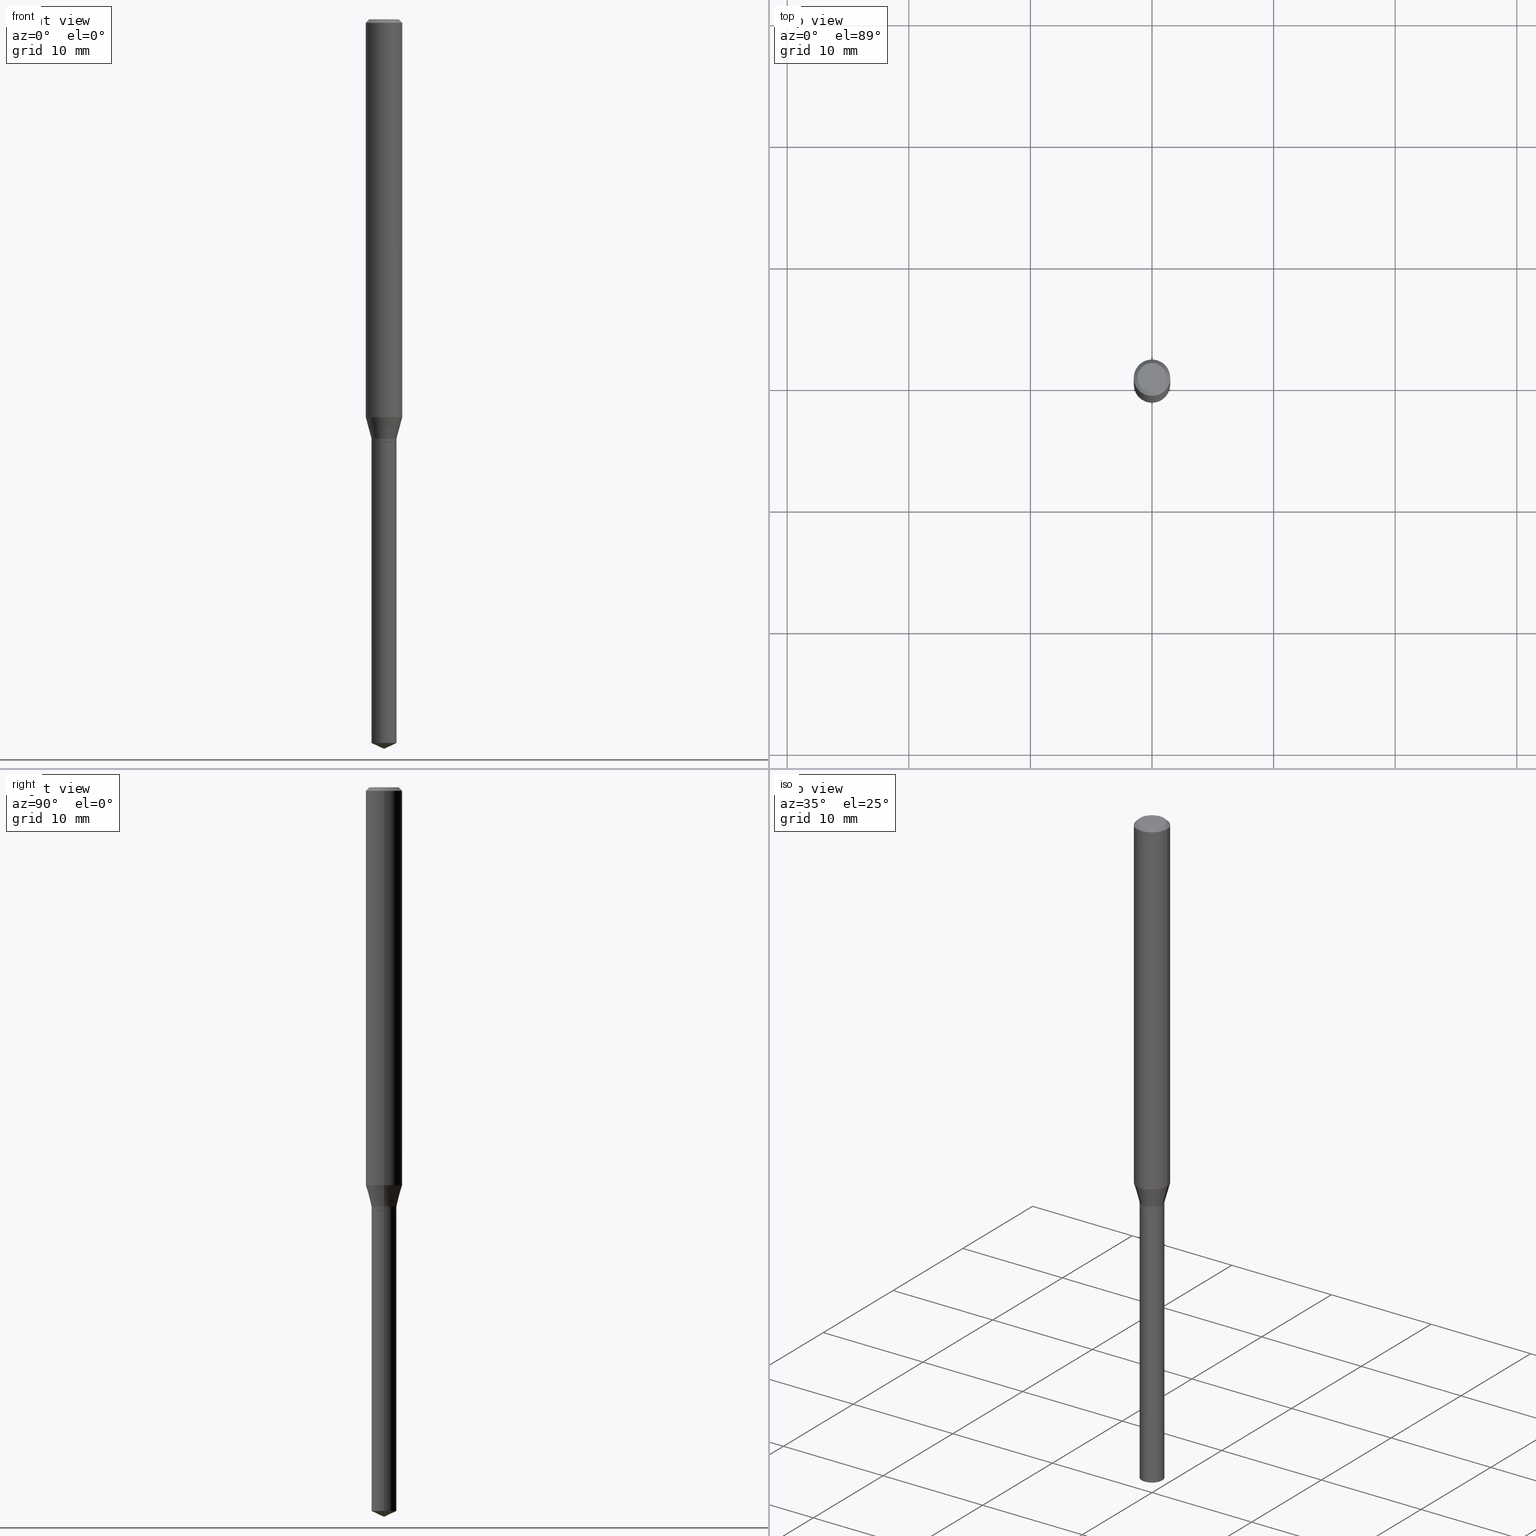
[diagram: canonical four-view strip — front | top / right | iso, engineering-drawing reading convention]
A machine part, canonical four-view strip (front | top / right | iso — engineering-drawing reading convention). The complete STEP part file that produces these views, byte-faithful:
ISO-10303-21;
HEADER;
FILE_DESCRIPTION (( 'STEP AP203' ),
    '1' );
FILE_NAME ('07607.STEP',
    '2024-04-23T23:40:49',
    ( '' ),
    ( '' ),
    'SwSTEP 2.0',
    'SolidWorks 2023',
    '' );
FILE_SCHEMA (( 'CONFIG_CONTROL_DESIGN' ));
ENDSEC;

DATA;
#1 = CONICAL_SURFACE ( 'NONE', #436, 0.03984999999999999654, 0.7853981633978580623 ) ;
#2 = CARTESIAN_POINT ( 'NONE',  ( -9.050161304213721862E-28, 1.292123180114298356E-13, 37.00787874015748002 ) ) ;
#3 = AXIS2_PLACEMENT_3D ( 'NONE', #201, #46, #124 ) ;
#4 = CARTESIAN_POINT ( 'NONE',  ( 0.04035000000000003167, -5.023194202193633162E-15, -1.358000000000000096 ) ) ;
#5 = DIMENSIONAL_EXPONENTS ( 1.000000000000000000, 0.000000000000000000, 0.000000000000000000, 0.000000000000000000, 0.000000000000000000, 0.000000000000000000, 0.000000000000000000 ) ;
#6 = CC_DESIGN_DATE_AND_TIME_ASSIGNMENT ( #303, #101, ( #152 ) ) ;
#7 = CIRCLE ( 'NONE', #215, 0.04035000000000003167 ) ;
#8 = CYLINDRICAL_SURFACE ( 'NONE', #31, 0.05905000000000008159 ) ;
#9 = CONICAL_SURFACE ( 'NONE', #3, 84.42940631927376671, 1.134464013796313342 ) ;
#10 = CARTESIAN_POINT ( 'NONE',  ( 3.320946638799415978E-29, -4.741431658148991442E-15, -1.358000000000000096 ) ) ;
#11 = CYLINDRICAL_SURFACE ( 'NONE', #17, 0.04035000000000003167 ) ;
#12 = DIRECTION ( 'NONE',  ( -2.445468806185136597E-29, 3.491481338843145583E-15, 1.000000000000000000 ) ) ;
#13 = EDGE_CURVE ( 'NONE', #308, #357, #212, .T. ) ;
#14 = EDGE_LOOP ( 'NONE', ( #104, #78, #474, #96 ) ) ;
#15 = DIRECTION ( 'NONE',  ( -2.445468806185136597E-29, 3.491481338843145583E-15, 1.000000000000000000 ) ) ;
#16 = DIRECTION ( 'NONE',  ( -1.000000000000000000, 6.982962677686265922E-15, -4.876176775795935793E-29 ) ) ;
#17 = AXIS2_PLACEMENT_3D ( 'NONE', #167, #321, #468 ) ;
#18 = CARTESIAN_POINT ( 'NONE',  ( 4.132873053354867254E-48, -5.900647395337818946E-34, -1.690012582823346072E-19 ) ) ;
#19 = VECTOR ( 'NONE', #55, 39.37007874015748143 ) ;
#20 = DIRECTION ( 'NONE',  ( 1.000000000000000000, -6.982962677686270655E-15, 0.000000000000000000 ) ) ;
#21 = DATE_AND_TIME ( #345, #309 ) ;
#22 = ORIENTED_EDGE ( 'NONE', *, *, #102, .F. ) ;
#23 = APPROVAL_STATUS ( 'not_yet_approved' ) ;
#24 = ORIENTED_EDGE ( 'NONE', *, *, #401, .T. ) ;
#25 = DIRECTION ( 'NONE',  ( -2.438088387897960049E-29, 3.491481338843145188E-15, 1.000000000000000000 ) ) ;
#26 = DIRECTION ( 'NONE',  ( -2.445468806185136597E-29, 3.491481338843145583E-15, 1.000000000000000000 ) ) ;
#27 = CARTESIAN_POINT ( 'NONE',  ( 3.350536811354256393E-29, -4.783678582348994195E-15, -1.370100000000000318 ) ) ;
#28 = CIRCLE ( 'NONE', #380, 0.04035000000000003167 ) ;
#29 = FACE_OUTER_BOUND ( 'NONE', #140, .T. ) ;
#30 = CLOSED_SHELL ( 'NONE', ( #109, #439, #359, #170, #100 ) ) ;
#31 = AXIS2_PLACEMENT_3D ( 'NONE', #305, #395, #105 ) ;
#32 = CARTESIAN_POINT ( 'NONE',  ( 0.000000000000000000, 0.000000000000000000, 0.000000000000000000 ) ) ;
#33 = CC_DESIGN_APPROVAL ( #343, ( #82 ) ) ;
#34 = DATE_TIME_ROLE ( 'creation_date' ) ;
#35 = EDGE_CURVE ( 'NONE', #280, #129, #28, .T. ) ;
#36 = DIRECTION ( 'NONE',  ( 1.000000000000000000, -6.982962677686266711E-15, 4.876185090822587894E-29 ) ) ;
#37 = APPROVAL_ROLE ( '' ) ;
#38 =( NAMED_UNIT ( * ) PLANE_ANGLE_UNIT ( ) SI_UNIT ( $, .RADIAN. ) );
#39 = DIRECTION ( 'NONE',  ( 1.000000000000000000, -6.982962677686267499E-15, 4.876176775795936353E-29 ) ) ;
#40 = LINE ( 'NONE', #72, #327 ) ;
#41 = EDGE_CURVE ( 'NONE', #280, #288, #437, .T. ) ;
#42 = AXIS2_PLACEMENT_3D ( 'NONE', #338, #323, #138 ) ;
#43 = DIRECTION ( 'NONE',  ( -2.445468806185136597E-29, 3.491481338843145583E-15, 1.000000000000000000 ) ) ;
#44 = MANIFOLD_SOLID_BREP ( 'Body-Move/Copy2[1]', #30 ) ;
#45 = CARTESIAN_POINT ( 'NONE',  ( -0.04035000000000003167, -4.474978256035082057E-15, -1.369600000000000595 ) ) ;
#46 = DIRECTION ( 'NONE',  ( -2.445468806185136597E-29, 3.491481338843145583E-15, 1.000000000000000000 ) ) ;
#47 = EDGE_CURVE ( 'NONE', #245, #158, #7, .T. ) ;
#48 = ORIENTED_EDGE ( 'NONE', *, *, #350, .T. ) ;
#49 = EDGE_CURVE ( 'NONE', #178, #166, #76, .T. ) ;
#50 = AXIS2_PLACEMENT_3D ( 'NONE', #274, #383, #36 ) ;
#51 = DIRECTION ( 'NONE',  ( 1.000000000000000000, -6.982962677686265133E-15, 0.000000000000000000 ) ) ;
#52 = DIRECTION ( 'NONE',  ( -1.000000000000000000, 6.982962677686266711E-15, 0.000000000000000000 ) ) ;
#53 = ORIENTED_EDGE ( 'NONE', *, *, #149, .F. ) ;
#54 = ORIENTED_EDGE ( 'NONE', *, *, #220, .F. ) ;
#55 = DIRECTION ( 'NONE',  ( 0.7071067811865453523, -7.319954787623248157E-15, -0.7071067811865496822 ) ) ;
#56 = CONICAL_SURFACE ( 'NONE', #466, 0.04035000000000003167, 0.2617993877991496854 ) ;
#57 = ADVANCED_FACE ( 'NONE', ( #145 ), #233, .T. ) ;
#58 = LOCAL_TIME ( 19, 40, 49.00000000000000000, #384 ) ;
#59 = PRODUCT_DEFINITION_SHAPE ( 'NONE', 'NONE',  #394 ) ;
#60 = DIRECTION ( 'NONE',  ( 1.000000000000000000, -6.982962677686271444E-15, 0.000000000000000000 ) ) ;
#61 = ORIENTED_EDGE ( 'NONE', *, *, #465, .T. ) ;
#62 = ORIENTED_EDGE ( 'NONE', *, *, #13, .T. ) ;
#63 = CARTESIAN_POINT ( 'NONE',  ( -0.05905000000000015792, -4.078187959153139361E-15, -1.288210649898461790 ) ) ;
#64 = DIRECTION ( 'NONE',  ( 1.000000000000000000, 0.000000000000000000, 0.000000000000000000 ) ) ;
#65 = DIRECTION ( 'NONE',  ( -2.445468806185136597E-29, 3.491481338843145583E-15, 1.000000000000000000 ) ) ;
#66 = VECTOR ( 'NONE', #393, 39.37007874015748143 ) ;
#67 = VECTOR ( 'NONE', #313, 39.37007874015748143 ) ;
#68 = DIRECTION ( 'NONE',  ( -2.445468806185136877E-29, 3.491481338843145188E-15, 1.000000000000000000 ) ) ;
#69 = APPROVAL_STATUS ( 'not_yet_approved' ) ;
#70 = DIRECTION ( 'NONE',  ( -2.445468806185136877E-29, 3.491481338843145188E-15, 1.000000000000000000 ) ) ;
#71 = CARTESIAN_POINT ( 'NONE',  ( 0.04034999999999999698, -5.065441126393635915E-15, -1.370100000000000318 ) ) ;
#72 = CARTESIAN_POINT ( 'NONE',  ( -0.05904999999999999832, 3.711095515056362547E-16, -0.01181000000000007044 ) ) ;
#73 = VERTEX_POINT ( 'NONE', #210 ) ;
#74 = CARTESIAN_POINT ( 'NONE',  ( 3.350536811354256393E-29, -4.783678582348994195E-15, -1.370100000000000318 ) ) ;
#75 = COORDINATED_UNIVERSAL_TIME_OFFSET ( 5, 0, .BEHIND. ) ;
#76 = CIRCLE ( 'NONE', #314, 0.04034999999999999698 ) ;
#77 = AXIS2_PLACEMENT_3D ( 'NONE', #440, #330, #476 ) ;
#78 = ORIENTED_EDGE ( 'NONE', *, *, #123, .T. ) ;
#79 = EDGE_CURVE ( 'NONE', #288, #308, #473, .T. ) ;
#80 = ORIENTED_EDGE ( 'NONE', *, *, #41, .T. ) ;
#81 = AXIS2_PLACEMENT_3D ( 'NONE', #278, #203, #398 ) ;
#82 = PRODUCT_DEFINITION_FORMATION_WITH_SPECIFIED_SOURCE ( 'ANY', '', #144, .NOT_KNOWN. ) ;
#83 = EDGE_LOOP ( 'NONE', ( #355, #443, #132, #485 ) ) ;
#84 = CC_DESIGN_PERSON_AND_ORGANIZATION_ASSIGNMENT ( #347, #227, ( #152 ) ) ;
#85 = AXIS2_PLACEMENT_3D ( 'NONE', #265, #461, #270 ) ;
#86 = EDGE_LOOP ( 'NONE', ( #161, #364, #225, #183 ) ) ;
#87 = CARTESIAN_POINT ( 'NONE',  ( 3.349314076951164712E-29, -4.781932841679574269E-15, -1.369600000000000595 ) ) ;
#88 = ORIENTED_EDGE ( 'NONE', *, *, #276, .F. ) ;
#89 = EDGE_CURVE ( 'NONE', #308, #288, #116, .T. ) ;
#90 = DIRECTION ( 'NONE',  ( 1.000000000000000000, -6.982962677686265133E-15, 0.000000000000000000 ) ) ;
#91 = PRODUCT_RELATED_PRODUCT_CATEGORY ( 'detail', '', ( #144 ) ) ;
#92 = ORIENTED_EDGE ( 'NONE', *, *, #460, .T. ) ;
#93 = CARTESIAN_POINT ( 'NONE',  ( 0.04035000000000000392, -8.463645746625293434E-15, -2.343384485993445843 ) ) ;
#94 = ORIENTED_EDGE ( 'NONE', *, *, #285, .F. ) ;
#95 = VECTOR ( 'NONE', #269, 39.37007874015748143 ) ;
#96 = ORIENTED_EDGE ( 'NONE', *, *, #248, .F. ) ;
#97 = APPROVAL_DATE_TIME ( #263, #343 ) ;
#98 = DIRECTION ( 'NONE',  ( -2.445468806185136877E-29, 3.491481338843145188E-15, 1.000000000000000000 ) ) ;
#99 = ORIENTED_EDGE ( 'NONE', *, *, #365, .T. ) ;
#100 = ADVANCED_FACE ( 'NONE', ( #368 ), #372, .F. ) ;
#101 = DATE_TIME_ROLE ( 'classification_date' ) ;
#102 = EDGE_CURVE ( 'NONE', #301, #357, #122, .T. ) ;
#103 = APPROVAL_ROLE ( '' ) ;
#104 = ORIENTED_EDGE ( 'NONE', *, *, #470, .T. ) ;
#105 = DIRECTION ( 'NONE',  ( 1.000000000000000000, -6.982962677686267499E-15, 4.876176775795936353E-29 ) ) ;
#106 = CIRCLE ( 'NONE', #172, 0.04035000000000003167 ) ;
#107 = VECTOR ( 'NONE', #386, 39.37007874015748143 ) ;
#108 = CARTESIAN_POINT ( 'NONE',  ( 0.04724000000000000421, -3.852183633974369345E-16, -3.380025165621689721E-19 ) ) ;
#109 = ADVANCED_FACE ( 'NONE', ( #326 ), #410, .T. ) ;
#110 = LINE ( 'NONE', #353, #427 ) ;
#111 = LINE ( 'NONE', #328, #19 ) ;
#112 = ORIENTED_EDGE ( 'NONE', *, *, #276, .T. ) ;
#113 = CYLINDRICAL_SURFACE ( 'NONE', #283, 0.04034999999999999698 ) ;
#114 = LINE ( 'NONE', #126, #242 ) ;
#115 = ADVANCED_BREP_SHAPE_REPRESENTATION ( '07607', ( #44, #206, #209 ), #448 ) ;
#116 = CIRCLE ( 'NONE', #159, 0.05905000000000015792 ) ;
#117 = DIRECTION ( 'NONE',  ( 1.000000000000000000, -6.982962677686258822E-15, 0.000000000000000000 ) ) ;
#118 = DATE_AND_TIME ( #198, #128 ) ;
#119 = ADVANCED_FACE ( 'NONE', ( #135 ), #462, .T. ) ;
#120 = ORIENTED_EDGE ( 'NONE', *, *, #35, .F. ) ;
#121 = DIRECTION ( 'NONE',  ( -2.445468806185136597E-29, 3.491481338843145583E-15, 1.000000000000000000 ) ) ;
#122 = CIRCLE ( 'NONE', #197, 0.05904999999999999832 ) ;
#123 = EDGE_CURVE ( 'NONE', #489, #158, #110, .T. ) ;
#124 = DIRECTION ( 'NONE',  ( 1.000000000000000000, -6.982962677686265922E-15, 0.000000000000000000 ) ) ;
#125 = ORIENTED_EDGE ( 'NONE', *, *, #374, .F. ) ;
#126 = CARTESIAN_POINT ( 'NONE',  ( -0.05905000000000008159, 4.195754854663397395E-16, -2.904631170795525745E-30 ) ) ;
#127 = DIRECTION ( 'NONE',  ( 2.438088387897960049E-29, -3.491481338843145188E-15, -1.000000000000000000 ) ) ;
#128 = LOCAL_TIME ( 19, 40, 49.00000000000000000, #75 ) ;
#129 = VERTEX_POINT ( 'NONE', #4 ) ;
#130 = FACE_OUTER_BOUND ( 'NONE', #271, .T. ) ;
#131 = PERSON ( 'UNSPECIFIED', 'UNSPECIFIED', 'UNSPECIFIED', ('UNSPECIFIED'), ('UNSPECIFIED'), ('UNSPECIFIED') ) ;
#132 = ORIENTED_EDGE ( 'NONE', *, *, #350, .F. ) ;
#133 = ORIENTED_EDGE ( 'NONE', *, *, #102, .T. ) ;
#134 = DIRECTION ( 'NONE',  ( 2.438088387897960049E-29, -3.491481338843145188E-15, -1.000000000000000000 ) ) ;
#135 = FACE_OUTER_BOUND ( 'NONE', #322, .T. ) ;
#136 = ORIENTED_EDGE ( 'NONE', *, *, #211, .T. ) ;
#137 = VERTEX_POINT ( 'NONE', #108 ) ;
#138 = DIRECTION ( 'NONE',  ( 1.000000000000000000, -6.982962677686266711E-15, 0.000000000000000000 ) ) ;
#139 = UNCERTAINTY_MEASURE_WITH_UNIT (LENGTH_MEASURE( 1.000000000000000082E-05 ), #190, 'distance_accuracy_value', 'NONE');
#140 = EDGE_LOOP ( 'NONE', ( #148, #156 ) ) ;
#141 = ORIENTED_EDGE ( 'NONE', *, *, #89, .F. ) ;
#142 = AXIS2_PLACEMENT_3D ( 'NONE', #324, #302, #51 ) ;
#143 = CONICAL_SURFACE ( 'NONE', #289, 0.03984999999999999654, 0.7853981633978580623 ) ;
#144 = PRODUCT ( '07607', '07607', '', ( #487 ) ) ;
#145 = FACE_OUTER_BOUND ( 'NONE', #232, .T. ) ;
#146 = CALENDAR_DATE ( 2024, 23, 4 ) ;
#147 = CARTESIAN_POINT ( 'NONE',  ( -0.03984999999999999654, -4.497878074974484277E-15, -1.370100000000000318 ) ) ;
#148 = ORIENTED_EDGE ( 'NONE', *, *, #470, .F. ) ;
#149 = EDGE_CURVE ( 'NONE', #329, #137, #411, .T. ) ;
#150 = PERSON_AND_ORGANIZATION_ROLE ( 'design_owner' ) ;
#151 = AXIS2_PLACEMENT_3D ( 'NONE', #18, #134, #252 ) ;
#152 = SECURITY_CLASSIFICATION ( '', '', #221 ) ;
#153 = FACE_OUTER_BOUND ( 'NONE', #438, .T. ) ;
#154 = CARTESIAN_POINT ( 'NONE',  ( 5.776686413970529753E-29, -8.247577218615279626E-15, -2.362200000000000077 ) ) ;
#155 = CARTESIAN_POINT ( 'NONE',  ( 3.350536811354256393E-29, -4.783678582348994195E-15, -1.370100000000000318 ) ) ;
#156 = ORIENTED_EDGE ( 'NONE', *, *, #490, .F. ) ;
#157 = CARTESIAN_POINT ( 'NONE',  ( 8.265746106709734507E-48, -1.180129479067563789E-33, -3.380025165646692144E-19 ) ) ;
#158 = VERTEX_POINT ( 'NONE', #45 ) ;
#159 = AXIS2_PLACEMENT_3D ( 'NONE', #471, #294, #20 ) ;
#160 = CARTESIAN_POINT ( 'NONE',  ( 5.730673661395162448E-29, -8.181883202580652503E-15, -2.343384485993445843 ) ) ;
#161 = ORIENTED_EDGE ( 'NONE', *, *, #254, .T. ) ;
#162 = CC_DESIGN_PERSON_AND_ORGANIZATION_ASSIGNMENT ( #373, #150, ( #144 ) ) ;
#163 = AXIS2_PLACEMENT_3D ( 'NONE', #406, #174, #52 ) ;
#164 = AXIS2_PLACEMENT_3D ( 'NONE', #389, #65, #452 ) ;
#165 = CARTESIAN_POINT ( 'NONE',  ( -0.04035000000000003167, -4.474978256035082057E-15, -1.358000000000000096 ) ) ;
#166 = VERTEX_POINT ( 'NONE', #453 ) ;
#167 = CARTESIAN_POINT ( 'NONE',  ( 0.000000000000000000, 0.000000000000000000, 0.000000000000000000 ) ) ;
#168 = CARTESIAN_POINT ( 'NONE',  ( 3.350536811354256393E-29, -4.783678582348994195E-15, -1.370100000000000318 ) ) ;
#169 = EDGE_LOOP ( 'NONE', ( #319, #112, #371 ) ) ;
#170 = ADVANCED_FACE ( 'NONE', ( #153 ), #113, .T. ) ;
#171 = CARTESIAN_POINT ( 'NONE',  ( 2.888098660104663766E-31, -4.123439461173779647E-17, -0.01181000000000007044 ) ) ;
#172 = AXIS2_PLACEMENT_3D ( 'NONE', #196, #272, #200 ) ;
#173 = AXIS2_PLACEMENT_3D ( 'NONE', #27, #223, #199 ) ;
#174 = DIRECTION ( 'NONE',  ( 2.445468806185136597E-29, -3.491481338843145583E-15, -1.000000000000000000 ) ) ;
#175 = ORIENTED_EDGE ( 'NONE', *, *, #237, .T. ) ;
#176 = APPROVAL_ROLE ( '' ) ;
#177 = CARTESIAN_POINT ( 'NONE',  ( -0.04724000000000000421, 3.504923541997677355E-16, -3.380025165670481712E-19 ) ) ;
#178 = VERTEX_POINT ( 'NONE', #486 ) ;
#179 = APPROVAL_DATE_TIME ( #449, #445 ) ;
#180 = CC_DESIGN_DATE_AND_TIME_ASSIGNMENT ( #21, #34, ( #394 ) ) ;
#181 = DIRECTION ( 'NONE',  ( 1.000000000000000000, -6.982962677686265922E-15, 4.876176775795935793E-29 ) ) ;
#182 = FACE_OUTER_BOUND ( 'NONE', #14, .T. ) ;
#183 = ORIENTED_EDGE ( 'NONE', *, *, #365, .F. ) ;
#184 = PERSON_AND_ORGANIZATION ( #131, #234 ) ;
#185 = LENGTH_MEASURE_WITH_UNIT ( LENGTH_MEASURE( 0.02539999999999999897 ), #310 );
#186 = CARTESIAN_POINT ( 'NONE',  ( 5.776686413970529753E-29, -8.247577218615279626E-15, -2.362200000000000077 ) ) ;
#187 = APPROVAL_PERSON_ORGANIZATION ( #259, #358, #37 ) ;
#188 = LINE ( 'NONE', #421, #483 ) ;
#189 = PERSON_AND_ORGANIZATION ( #131, #234 ) ;
#190 =( CONVERSION_BASED_UNIT ( 'INCH', #185 ) LENGTH_UNIT ( ) NAMED_UNIT ( #5 ) );
#191 = DIRECTION ( 'NONE',  ( 1.000000000000000000, -6.982962677686271444E-15, 0.000000000000000000 ) ) ;
#192 = EDGE_CURVE ( 'NONE', #158, #280, #222, .T. ) ;
#193 = DIRECTION ( 'NONE',  ( 1.000000000000000000, -6.982962677686271444E-15, 0.000000000000000000 ) ) ;
#194 = PERSON_AND_ORGANIZATION_ROLE ( 'creator' ) ;
#195 = CC_DESIGN_PERSON_AND_ORGANIZATION_ASSIGNMENT ( #258, #415, ( #82 ) ) ;
#196 = CARTESIAN_POINT ( 'NONE',  ( 3.320946638799415978E-29, -4.741431658148991442E-15, -1.358000000000000096 ) ) ;
#197 = AXIS2_PLACEMENT_3D ( 'NONE', #171, #447, #331 ) ;
#198 = CALENDAR_DATE ( 2024, 23, 4 ) ;
#199 = DIRECTION ( 'NONE',  ( 1.000000000000000000, -6.982962677686258822E-15, 0.000000000000000000 ) ) ;
#200 = DIRECTION ( 'NONE',  ( 1.000000000000000000, -6.982962677686265133E-15, 0.000000000000000000 ) ) ;
#201 = CARTESIAN_POINT ( 'NONE',  ( -9.050161304213721862E-28, 1.292123180114298356E-13, 37.00787874015748002 ) ) ;
#202 = EDGE_LOOP ( 'NONE', ( #472, #24, #48, #339 ) ) ;
#203 = DIRECTION ( 'NONE',  ( -2.445468806185136597E-29, 3.491481338843145583E-15, 1.000000000000000000 ) ) ;
#204 = CARTESIAN_POINT ( 'NONE',  ( 3.350536811354256393E-29, -4.783678582348994195E-15, -1.370100000000000318 ) ) ;
#205 = EDGE_CURVE ( 'NONE', #245, #129, #188, .T. ) ;
#206 = MANIFOLD_SOLID_BREP ( 'Body-Move/Copy2[2]', #207 ) ;
#207 = CLOSED_SHELL ( 'NONE', ( #361, #311, #251, #57, #273, #279, #286, #119, #318, #290, #332, #230 ) ) ;
#208 = AXIS2_PLACEMENT_3D ( 'NONE', #214, #369, #477 ) ;
#209 = AXIS2_PLACEMENT_3D ( 'NONE', #307, #295, #64 ) ;
#210 = CARTESIAN_POINT ( 'NONE',  ( -0.04035000000000000392, -7.895179208701451310E-15, -2.343384485993445843 ) ) ;
#211 = EDGE_CURVE ( 'NONE', #137, #329, #275, .T. ) ;
#212 = LINE ( 'NONE', #484, #241 ) ;
#213 = PLANE ( 'NONE',  #151 ) ;
#214 = CARTESIAN_POINT ( 'NONE',  ( 3.350536811354256393E-29, -4.783678582348994195E-15, -1.370100000000000318 ) ) ;
#215 = AXIS2_PLACEMENT_3D ( 'NONE', #87, #26, #407 ) ;
#216 = FACE_OUTER_BOUND ( 'NONE', #202, .T. ) ;
#217 = CARTESIAN_POINT ( 'NONE',  ( 3.150278960122170469E-29, -4.497763444619479643E-15, -1.288210649898461790 ) ) ;
#218 = EDGE_CURVE ( 'NONE', #166, #178, #342, .T. ) ;
#219 = CARTESIAN_POINT ( 'NONE',  ( 3.320946638799415978E-29, -4.741431658148991442E-15, -1.358000000000000096 ) ) ;
#220 = EDGE_CURVE ( 'NONE', #73, #166, #346, .T. ) ;
#221 = SECURITY_CLASSIFICATION_LEVEL ( 'unclassified' ) ;
#222 = LINE ( 'NONE', #419, #95 ) ;
#223 = DIRECTION ( 'NONE',  ( -2.445468806185136597E-29, 3.491481338843145583E-15, 1.000000000000000000 ) ) ;
#224 = VECTOR ( 'NONE', #298, 39.37007874015748143 ) ;
#225 = ORIENTED_EDGE ( 'NONE', *, *, #49, .F. ) ;
#226 = CIRCLE ( 'NONE', #85, 0.04034999999999999698 ) ;
#227 = PERSON_AND_ORGANIZATION_ROLE ( 'classification_officer' ) ;
#228 = LINE ( 'NONE', #349, #413 ) ;
#229 = DIRECTION ( 'NONE',  ( -2.445468806185136597E-29, 3.491481338843145583E-15, 1.000000000000000000 ) ) ;
#230 = ADVANCED_FACE ( 'NONE', ( #387 ), #1, .T. ) ;
#231 =( NAMED_UNIT ( * ) SI_UNIT ( $, .STERADIAN. ) SOLID_ANGLE_UNIT ( ) );
#232 = EDGE_LOOP ( 'NONE', ( #175, #80, #141, #244 ) ) ;
#233 = CONICAL_SURFACE ( 'NONE', #142, 0.04035000000000003167, 0.2617993877991496854 ) ;
#234 = ORGANIZATION ( 'UNSPECIFIED', 'UNSPECIFIED', '' ) ;
#235 = DIRECTION ( 'NONE',  ( -2.445468806185136597E-29, 3.491481338843145583E-15, 1.000000000000000000 ) ) ;
#236 = EDGE_CURVE ( 'NONE', #73, #320, #226, .T. ) ;
#237 = EDGE_CURVE ( 'NONE', #129, #280, #106, .T. ) ;
#238 = CARTESIAN_POINT ( 'NONE',  ( 0.03984999999999999654, -5.061949645054792119E-15, -1.370100000000000318 ) ) ;
#239 = VERTEX_POINT ( 'NONE', #356 ) ;
#240 = FACE_OUTER_BOUND ( 'NONE', #83, .T. ) ;
#241 = VECTOR ( 'NONE', #414, 39.37007874015748143 ) ;
#242 = VECTOR ( 'NONE', #98, 39.37007874015748143 ) ;
#243 = ORIENTED_EDGE ( 'NONE', *, *, #236, .T. ) ;
#244 = ORIENTED_EDGE ( 'NONE', *, *, #465, .F. ) ;
#245 = VERTEX_POINT ( 'NONE', #277 ) ;
#246 = ORIENTED_EDGE ( 'NONE', *, *, #149, .T. ) ;
#247 = ORIENTED_EDGE ( 'NONE', *, *, #285, .T. ) ;
#248 = EDGE_CURVE ( 'NONE', #239, #245, #429, .T. ) ;
#249 = CC_DESIGN_APPROVAL ( #358, ( #152 ) ) ;
#250 = DIRECTION ( 'NONE',  ( 1.000000000000000000, -6.982962677686270655E-15, 0.000000000000000000 ) ) ;
#251 = ADVANCED_FACE ( 'NONE', ( #240 ), #8, .T. ) ;
#252 = DIRECTION ( 'NONE',  ( -1.000000000000000000, 6.982962677686265922E-15, -4.876176775795935793E-29 ) ) ;
#253 = CARTESIAN_POINT ( 'NONE',  ( 3.350536811354256393E-29, -4.783678582348994195E-15, -1.370100000000000318 ) ) ;
#254 = EDGE_CURVE ( 'NONE', #320, #73, #381, .T. ) ;
#255 = DIRECTION ( 'NONE',  ( -2.445468806185136597E-29, 3.491481338843145583E-15, 1.000000000000000000 ) ) ;
#256 = AXIS2_PLACEMENT_3D ( 'NONE', #157, #344, #306 ) ;
#257 = ORIENTED_EDGE ( 'NONE', *, *, #218, .T. ) ;
#258 = PERSON_AND_ORGANIZATION ( #131, #234 ) ;
#259 = PERSON_AND_ORGANIZATION ( #131, #234 ) ;
#260 = FACE_OUTER_BOUND ( 'NONE', #169, .T. ) ;
#261 = EDGE_LOOP ( 'NONE', ( #475, #53, #92, #133 ) ) ;
#262 = DIRECTION ( 'NONE',  ( -2.445468806185136597E-29, 3.491481338843145583E-15, 1.000000000000000000 ) ) ;
#263 = DATE_AND_TIME ( #418, #58 ) ;
#264 = CARTESIAN_POINT ( 'NONE',  ( 0.04035000000000003167, -5.023194202193633162E-15, -1.358000000000000096 ) ) ;
#265 = CARTESIAN_POINT ( 'NONE',  ( 5.730673661395162448E-29, -8.181883202580652503E-15, -2.343384485993445843 ) ) ;
#266 = AXIS2_PLACEMENT_3D ( 'NONE', #74, #235, #193 ) ;
#267 = LOCAL_TIME ( 19, 40, 49.00000000000000000, #420 ) ;
#268 = DIRECTION ( 'NONE',  ( -2.445468806185136597E-29, 3.491481338843145583E-15, 1.000000000000000000 ) ) ;
#269 = DIRECTION ( 'NONE',  ( -2.445468806185136877E-29, 3.491481338843145188E-15, 1.000000000000000000 ) ) ;
#270 = DIRECTION ( 'NONE',  ( 1.000000000000000000, -6.982962677686271444E-15, 0.000000000000000000 ) ) ;
#271 = EDGE_LOOP ( 'NONE', ( #246, #136 ) ) ;
#272 = DIRECTION ( 'NONE',  ( -2.445468806185136597E-29, 3.491481338843145583E-15, 1.000000000000000000 ) ) ;
#273 = ADVANCED_FACE ( 'NONE', ( #282 ), #456, .T. ) ;
#274 = CARTESIAN_POINT ( 'NONE',  ( 8.265746106709734507E-48, -1.180129479067563789E-33, -3.380025165646692144E-19 ) ) ;
#275 = CIRCLE ( 'NONE', #50, 0.04724000000000000421 ) ;
#276 = EDGE_CURVE ( 'NONE', #450, #73, #400, .T. ) ;
#277 = CARTESIAN_POINT ( 'NONE',  ( 0.04035000000000003167, -5.063695385724215200E-15, -1.369600000000000595 ) ) ;
#278 = CARTESIAN_POINT ( 'NONE',  ( 3.349314076951164712E-29, -4.781932841679574269E-15, -1.369600000000000595 ) ) ;
#279 = ADVANCED_FACE ( 'NONE', ( #434 ), #11, .T. ) ;
#280 = VERTEX_POINT ( 'NONE', #165 ) ;
#281 = FACE_OUTER_BOUND ( 'NONE', #385, .T. ) ;
#282 = FACE_OUTER_BOUND ( 'NONE', #479, .T. ) ;
#283 = AXIS2_PLACEMENT_3D ( 'NONE', #155, #262, #312 ) ;
#284 = CC_DESIGN_APPROVAL ( #445, ( #394 ) ) ;
#285 = EDGE_CURVE ( 'NONE', #158, #245, #458, .T. ) ;
#286 = ADVANCED_FACE ( 'NONE', ( #281 ), #56, .T. ) ;
#287 = VECTOR ( 'NONE', #464, 39.37007874015748143 ) ;
#288 = VERTEX_POINT ( 'NONE', #63 ) ;
#289 = AXIS2_PLACEMENT_3D ( 'NONE', #425, #43, #435 ) ;
#290 = ADVANCED_FACE ( 'NONE', ( #130 ), #213, .F. ) ;
#291 = ORIENTED_EDGE ( 'NONE', *, *, #123, .F. ) ;
#292 = CALENDAR_DATE ( 2024, 23, 4 ) ;
#293 = FACE_OUTER_BOUND ( 'NONE', #261, .T. ) ;
#294 = DIRECTION ( 'NONE',  ( -2.445468806185136597E-29, 3.491481338843145583E-15, 1.000000000000000000 ) ) ;
#295 = DIRECTION ( 'NONE',  ( 0.000000000000000000, 0.000000000000000000, 1.000000000000000000 ) ) ;
#296 = ORIENTED_EDGE ( 'NONE', *, *, #192, .F. ) ;
#297 = CARTESIAN_POINT ( 'NONE',  ( 0.05904999999999999832, -4.535783407291118600E-16, -0.01181000000000007044 ) ) ;
#298 = DIRECTION ( 'NONE',  ( -0.2588190451025210170, 5.211531920934547886E-15, 0.9659258262890682012 ) ) ;
#299 = CONICAL_SURFACE ( 'NONE', #77, 0.05904999999999999832, 0.7853981633974452814 ) ;
#300 = AXIS2_PLACEMENT_3D ( 'NONE', #2, #354, #378 ) ;
#301 = VERTEX_POINT ( 'NONE', #375 ) ;
#302 = DIRECTION ( 'NONE',  ( -2.445468806185136597E-29, 3.491481338843145583E-15, 1.000000000000000000 ) ) ;
#303 = DATE_AND_TIME ( #146, #267 ) ;
#304 = DIRECTION ( 'NONE',  ( -0.7071067811865453523, 2.468850131082234184E-15, -0.7071067811865496822 ) ) ;
#305 = CARTESIAN_POINT ( 'NONE',  ( 0.000000000000000000, 0.000000000000000000, 0.000000000000000000 ) ) ;
#306 = DIRECTION ( 'NONE',  ( 1.000000000000000000, -6.982962677686266711E-15, 4.876185090822587894E-29 ) ) ;
#307 = CARTESIAN_POINT ( 'NONE',  ( 0.000000000000000000, 0.000000000000000000, 0.000000000000000000 ) ) ;
#308 = VERTEX_POINT ( 'NONE', #379 ) ;
#309 = LOCAL_TIME ( 19, 40, 49.00000000000000000, #336 ) ;
#310 =( LENGTH_UNIT ( ) NAMED_UNIT ( * ) SI_UNIT ( $, .METRE. ) );
#311 = ADVANCED_FACE ( 'NONE', ( #216 ), #390, .T. ) ;
#312 = DIRECTION ( 'NONE',  ( 1.000000000000000000, -6.982962677686271444E-15, 0.000000000000000000 ) ) ;
#313 = DIRECTION ( 'NONE',  ( -2.445468806185136877E-29, 3.491481338843145188E-15, 1.000000000000000000 ) ) ;
#314 = AXIS2_PLACEMENT_3D ( 'NONE', #168, #404, #60 ) ;
#315 = AXIS2_PLACEMENT_3D ( 'NONE', #217, #15, #250 ) ;
#316 = EDGE_LOOP ( 'NONE', ( #291, #363, #337, #94 ) ) ;
#317 = DIRECTION ( 'NONE',  ( 1.000000000000000000, -6.982962677686265133E-15, 4.876176775795935793E-29 ) ) ;
#318 = ADVANCED_FACE ( 'NONE', ( #293 ), #299, .T. ) ;
#319 = ORIENTED_EDGE ( 'NONE', *, *, #428, .F. ) ;
#320 = VERTEX_POINT ( 'NONE', #93 ) ;
#321 = DIRECTION ( 'NONE',  ( -2.445468806185136597E-29, 3.491481338843145583E-15, 1.000000000000000000 ) ) ;
#322 = EDGE_LOOP ( 'NONE', ( #125, #376, #62, #22 ) ) ;
#323 = DIRECTION ( 'NONE',  ( -2.445468806185136597E-29, 3.491481338843145583E-15, 1.000000000000000000 ) ) ;
#324 = CARTESIAN_POINT ( 'NONE',  ( 3.320946638799415978E-29, -4.741431658148991442E-15, -1.358000000000000096 ) ) ;
#325 = AXIS2_PLACEMENT_3D ( 'NONE', #160, #268, #191 ) ;
#326 = FACE_OUTER_BOUND ( 'NONE', #86, .T. ) ;
#327 = VECTOR ( 'NONE', #304, 39.37007874015748143 ) ;
#328 = CARTESIAN_POINT ( 'NONE',  ( 0.05904999999999999832, -4.463468013801466955E-16, -0.01181000000000007044 ) ) ;
#329 = VERTEX_POINT ( 'NONE', #177 ) ;
#330 = DIRECTION ( 'NONE',  ( 2.445468806185136597E-29, -3.491481338843145583E-15, -1.000000000000000000 ) ) ;
#331 = DIRECTION ( 'NONE',  ( 1.000000000000000000, -6.982962677686266711E-15, 0.000000000000000000 ) ) ;
#332 = ADVANCED_FACE ( 'NONE', ( #29 ), #334, .F. ) ;
#333 = CC_DESIGN_PERSON_AND_ORGANIZATION_ASSIGNMENT ( #377, #340, ( #82 ) ) ;
#334 = PLANE ( 'NONE',  #446 ) ;
#335 = ORIENTED_EDGE ( 'NONE', *, *, #41, .F. ) ;
#336 = COORDINATED_UNIVERSAL_TIME_OFFSET ( 5, 0, .BEHIND. ) ;
#337 = ORIENTED_EDGE ( 'NONE', *, *, #248, .T. ) ;
#338 = CARTESIAN_POINT ( 'NONE',  ( 2.888098660104663766E-31, -4.123439461173779647E-17, -0.01181000000000007044 ) ) ;
#339 = ORIENTED_EDGE ( 'NONE', *, *, #460, .F. ) ;
#340 = PERSON_AND_ORGANIZATION_ROLE ( 'creator' ) ;
#341 = LINE ( 'NONE', #264, #107 ) ;
#342 = CIRCLE ( 'NONE', #266, 0.04034999999999999698 ) ;
#343 = APPROVAL ( #482, 'UNSPECIFIED' ) ;
#344 = DIRECTION ( 'NONE',  ( -2.445468806185136597E-29, 3.491481338843145583E-15, 1.000000000000000000 ) ) ;
#345 = CALENDAR_DATE ( 2024, 23, 4 ) ;
#346 = LINE ( 'NONE', #391, #403 ) ;
#347 = PERSON_AND_ORGANIZATION ( #131, #234 ) ;
#348 = SHAPE_DEFINITION_REPRESENTATION ( #59, #115 ) ;
#349 = CARTESIAN_POINT ( 'NONE',  ( 5.776686413970529753E-29, -8.247577218615279626E-15, -2.362200000000000077 ) ) ;
#350 = EDGE_CURVE ( 'NONE', #357, #301, #352, .T. ) ;
#351 = AXIS2_PLACEMENT_3D ( 'NONE', #253, #127, #16 ) ;
#352 = CIRCLE ( 'NONE', #42, 0.05904999999999999832 ) ;
#353 = CARTESIAN_POINT ( 'NONE',  ( -0.03984999999999999654, -4.500527302148594690E-15, -1.370100000000000318 ) ) ;
#354 = DIRECTION ( 'NONE',  ( -2.445468806185136597E-29, 3.491481338843145583E-15, 1.000000000000000000 ) ) ;
#355 = ORIENTED_EDGE ( 'NONE', *, *, #89, .T. ) ;
#356 = CARTESIAN_POINT ( 'NONE',  ( 0.03984999999999999654, -5.061949645054792119E-15, -1.370100000000000318 ) ) ;
#357 = VERTEX_POINT ( 'NONE', #297 ) ;
#358 = APPROVAL ( #69, 'UNSPECIFIED' ) ;
#359 = ADVANCED_FACE ( 'NONE', ( #469 ), #9, .T. ) ;
#360 = LOCAL_TIME ( 19, 40, 49.00000000000000000, #451 ) ;
#361 = ADVANCED_FACE ( 'NONE', ( #182 ), #143, .T. ) ;
#362 = ORIENTED_EDGE ( 'NONE', *, *, #205, .T. ) ;
#363 = ORIENTED_EDGE ( 'NONE', *, *, #490, .T. ) ;
#364 = ORIENTED_EDGE ( 'NONE', *, *, #220, .T. ) ;
#365 = EDGE_CURVE ( 'NONE', #320, #178, #423, .T. ) ;
#366 = ORIENTED_EDGE ( 'NONE', *, *, #218, .F. ) ;
#367 = DIRECTION ( 'NONE',  ( 1.000000000000000000, -6.982962677686265133E-15, 0.000000000000000000 ) ) ;
#368 = FACE_OUTER_BOUND ( 'NONE', #444, .T. ) ;
#369 = DIRECTION ( 'NONE',  ( -2.445468806185136597E-29, 3.491481338843145583E-15, 1.000000000000000000 ) ) ;
#370 = CIRCLE ( 'NONE', #173, 0.03984999999999999654 ) ;
#371 = ORIENTED_EDGE ( 'NONE', *, *, #254, .F. ) ;
#372 = PLANE ( 'NONE',  #351 ) ;
#373 = PERSON_AND_ORGANIZATION ( #131, #234 ) ;
#374 = EDGE_CURVE ( 'NONE', #288, #301, #114, .T. ) ;
#375 = CARTESIAN_POINT ( 'NONE',  ( -0.05904999999999999832, -1.849923434149267615E-15, -0.01181000000000007044 ) ) ;
#376 = ORIENTED_EDGE ( 'NONE', *, *, #79, .T. ) ;
#377 = PERSON_AND_ORGANIZATION ( #131, #234 ) ;
#378 = DIRECTION ( 'NONE',  ( 1.000000000000000000, -6.982962677686265922E-15, 0.000000000000000000 ) ) ;
#379 = CARTESIAN_POINT ( 'NONE',  ( 0.05905000000000015792, -4.910107390736854563E-15, -1.288210649898461790 ) ) ;
#380 = AXIS2_PLACEMENT_3D ( 'NONE', #219, #255, #90 ) ;
#381 = CIRCLE ( 'NONE', #325, 0.04034999999999999698 ) ;
#382 = APPROVAL_PERSON_ORGANIZATION ( #184, #445, #176 ) ;
#383 = DIRECTION ( 'NONE',  ( -2.445468806185136597E-29, 3.491481338843145583E-15, 1.000000000000000000 ) ) ;
#384 = COORDINATED_UNIVERSAL_TIME_OFFSET ( 5, 0, .BEHIND. ) ;
#385 = EDGE_LOOP ( 'NONE', ( #335, #399, #61, #409 ) ) ;
#386 = DIRECTION ( 'NONE',  ( 0.2588190451025210170, 1.565188264969624531E-15, 0.9659258262890682012 ) ) ;
#387 = FACE_OUTER_BOUND ( 'NONE', #316, .T. ) ;
#388 = DESIGN_CONTEXT ( 'detailed design', #430, 'design' ) ;
#389 = CARTESIAN_POINT ( 'NONE',  ( 3.350536811354256393E-29, -4.783678582348994195E-15, -1.370100000000000318 ) ) ;
#390 = CONICAL_SURFACE ( 'NONE', #163, 0.05904999999999999832, 0.7853981633974452814 ) ;
#391 = CARTESIAN_POINT ( 'NONE',  ( -0.04034999999999999698, -4.496974588469793791E-15, -1.370100000000000318 ) ) ;
#392 = ORIENTED_EDGE ( 'NONE', *, *, #236, .F. ) ;
#393 = DIRECTION ( 'NONE',  ( 0.7071067811868372299, -2.468850131085291414E-15, 0.7071067811862578045 ) ) ;
#394 = PRODUCT_DEFINITION ( 'UNKNOWN', '', #82, #388 ) ;
#395 = DIRECTION ( 'NONE',  ( -2.445468806185136597E-29, 3.491481338843145583E-15, 1.000000000000000000 ) ) ;
#396 = AXIS2_PLACEMENT_3D ( 'NONE', #432, #229, #317 ) ;
#397 = CIRCLE ( 'NONE', #164, 0.03984999999999999654 ) ;
#398 = DIRECTION ( 'NONE',  ( 1.000000000000000000, -6.982962677686265133E-15, 0.000000000000000000 ) ) ;
#399 = ORIENTED_EDGE ( 'NONE', *, *, #35, .T. ) ;
#400 = LINE ( 'NONE', #186, #287 ) ;
#401 = EDGE_CURVE ( 'NONE', #137, #357, #111, .T. ) ;
#402 = ORIENTED_EDGE ( 'NONE', *, *, #428, .T. ) ;
#403 = VECTOR ( 'NONE', #70, 39.37007874015748143 ) ;
#404 = DIRECTION ( 'NONE',  ( -2.445468806185136597E-29, 3.491481338843145583E-15, 1.000000000000000000 ) ) ;
#405 = ORIENTED_EDGE ( 'NONE', *, *, #192, .T. ) ;
#406 = CARTESIAN_POINT ( 'NONE',  ( 2.888098660104663766E-31, -4.123439461173779647E-17, -0.01181000000000007044 ) ) ;
#407 = DIRECTION ( 'NONE',  ( 1.000000000000000000, -6.982962677686265133E-15, 0.000000000000000000 ) ) ;
#408 = CC_DESIGN_PERSON_AND_ORGANIZATION_ASSIGNMENT ( #442, #194, ( #394 ) ) ;
#409 = ORIENTED_EDGE ( 'NONE', *, *, #79, .F. ) ;
#410 = CYLINDRICAL_SURFACE ( 'NONE', #208, 0.04034999999999999698 ) ;
#411 = CIRCLE ( 'NONE', #256, 0.04724000000000000421 ) ;
#412 = CARTESIAN_POINT ( 'NONE',  ( -0.04035000000000003167, -4.454727664269791038E-15, -1.358000000000000096 ) ) ;
#413 = VECTOR ( 'NONE', #455, 39.37007874015748143 ) ;
#414 = DIRECTION ( 'NONE',  ( -2.445468806185136877E-29, 3.491481338843145188E-15, 1.000000000000000000 ) ) ;
#415 = PERSON_AND_ORGANIZATION_ROLE ( 'design_supplier' ) ;
#416 = ORIENTED_EDGE ( 'NONE', *, *, #49, .T. ) ;
#417 = DIRECTION ( 'NONE',  ( -0.7071067811868372299, 7.493145998871401767E-15, 0.7071067811862578045 ) ) ;
#418 = CALENDAR_DATE ( 2024, 23, 4 ) ;
#419 = CARTESIAN_POINT ( 'NONE',  ( -0.04035000000000003167, 2.867039938792006501E-16, -1.984790308917856123E-30 ) ) ;
#420 = COORDINATED_UNIVERSAL_TIME_OFFSET ( 5, 0, .BEHIND. ) ;
#421 = CARTESIAN_POINT ( 'NONE',  ( 0.04035000000000003167, -2.817625440446410298E-16, 1.967537329033661581E-30 ) ) ;
#422 = APPLICATION_CONTEXT ( 'configuration controlled 3d designs of mechanical parts and assemblies' ) ;
#423 = LINE ( 'NONE', #71, #67 ) ;
#424 = ORIENTED_EDGE ( 'NONE', *, *, #47, .T. ) ;
#425 = CARTESIAN_POINT ( 'NONE',  ( 3.350536811354256393E-29, -4.783678582348994195E-15, -1.370100000000000318 ) ) ;
#426 = DIRECTION ( 'NONE',  ( -2.445468806185136597E-29, 3.491481338843145583E-15, 1.000000000000000000 ) ) ;
#427 = VECTOR ( 'NONE', #417, 39.37007874015748143 ) ;
#428 = EDGE_CURVE ( 'NONE', #450, #320, #228, .T. ) ;
#429 = LINE ( 'NONE', #238, #66 ) ;
#430 = APPLICATION_CONTEXT ( 'configuration controlled 3d designs of mechanical parts and assemblies' ) ;
#431 = EDGE_LOOP ( 'NONE', ( #88, #402, #392 ) ) ;
#432 = CARTESIAN_POINT ( 'NONE',  ( 0.000000000000000000, 0.000000000000000000, 0.000000000000000000 ) ) ;
#433 = CONICAL_SURFACE ( 'NONE', #300, 84.42940631927376671, 1.134464013796313342 ) ;
#434 = FACE_OUTER_BOUND ( 'NONE', #481, .T. ) ;
#435 = DIRECTION ( 'NONE',  ( 1.000000000000000000, -6.982962677686258822E-15, 0.000000000000000000 ) ) ;
#436 = AXIS2_PLACEMENT_3D ( 'NONE', #204, #12, #117 ) ;
#437 = LINE ( 'NONE', #412, #224 ) ;
#438 = EDGE_LOOP ( 'NONE', ( #54, #243, #99, #366 ) ) ;
#439 = ADVANCED_FACE ( 'NONE', ( #260 ), #433, .T. ) ;
#440 = CARTESIAN_POINT ( 'NONE',  ( 2.888098660104663766E-31, -4.123439461173779647E-17, -0.01181000000000007044 ) ) ;
#441 = ORIENTED_EDGE ( 'NONE', *, *, #205, .F. ) ;
#442 = PERSON_AND_ORGANIZATION ( #131, #234 ) ;
#443 = ORIENTED_EDGE ( 'NONE', *, *, #374, .T. ) ;
#444 = EDGE_LOOP ( 'NONE', ( #416, #257 ) ) ;
#445 = APPROVAL ( #23, 'UNSPECIFIED' ) ;
#446 = AXIS2_PLACEMENT_3D ( 'NONE', #480, #25, #181 ) ;
#447 = DIRECTION ( 'NONE',  ( -2.445468806185136597E-29, 3.491481338843145583E-15, 1.000000000000000000 ) ) ;
#448 =( GEOMETRIC_REPRESENTATION_CONTEXT ( 3 ) GLOBAL_UNCERTAINTY_ASSIGNED_CONTEXT ( ( #139 ) ) GLOBAL_UNIT_ASSIGNED_CONTEXT ( ( #190, #38, #231 ) ) REPRESENTATION_CONTEXT ( 'NONE', 'WORKASPACE' ) );
#449 = DATE_AND_TIME ( #292, #360 ) ;
#450 = VERTEX_POINT ( 'NONE', #154 ) ;
#451 = COORDINATED_UNIVERSAL_TIME_OFFSET ( 5, 0, .BEHIND. ) ;
#452 = DIRECTION ( 'NONE',  ( 1.000000000000000000, -6.982962677686258822E-15, 0.000000000000000000 ) ) ;
#453 = CARTESIAN_POINT ( 'NONE',  ( -0.04034999999999999698, -6.196076898585622156E-15, -1.370100000000000318 ) ) ;
#454 = APPLICATION_PROTOCOL_DEFINITION ( 'international standard', 'config_control_design', 1994, #430 ) ;
#455 = DIRECTION ( 'NONE',  ( 0.9063077870366496036, -4.853149677051374846E-15, 0.4226182617407001629 ) ) ;
#456 = CYLINDRICAL_SURFACE ( 'NONE', #396, 0.04035000000000003167 ) ;
#457 = APPROVAL_DATE_TIME ( #118, #358 ) ;
#458 = CIRCLE ( 'NONE', #81, 0.04035000000000003167 ) ;
#459 = APPROVAL_PERSON_ORGANIZATION ( #189, #343, #103 ) ;
#460 = EDGE_CURVE ( 'NONE', #329, #301, #40, .T. ) ;
#461 = DIRECTION ( 'NONE',  ( -2.445468806185136597E-29, 3.491481338843145583E-15, 1.000000000000000000 ) ) ;
#462 = CYLINDRICAL_SURFACE ( 'NONE', #463, 0.05905000000000008159 ) ;
#463 = AXIS2_PLACEMENT_3D ( 'NONE', #32, #426, #39 ) ;
#464 = DIRECTION ( 'NONE',  ( -0.9063077870366496036, 7.915267918739016209E-15, 0.4226182617407001629 ) ) ;
#465 = EDGE_CURVE ( 'NONE', #129, #308, #341, .T. ) ;
#466 = AXIS2_PLACEMENT_3D ( 'NONE', #10, #121, #367 ) ;
#467 = CC_DESIGN_SECURITY_CLASSIFICATION ( #152, ( #82 ) ) ;
#468 = DIRECTION ( 'NONE',  ( 1.000000000000000000, -6.982962677686265133E-15, 4.876176775795935793E-29 ) ) ;
#469 = FACE_OUTER_BOUND ( 'NONE', #431, .T. ) ;
#470 = EDGE_CURVE ( 'NONE', #239, #489, #397, .T. ) ;
#471 = CARTESIAN_POINT ( 'NONE',  ( 3.150278960122170469E-29, -4.497763444619479643E-15, -1.288210649898461790 ) ) ;
#472 = ORIENTED_EDGE ( 'NONE', *, *, #211, .F. ) ;
#473 = CIRCLE ( 'NONE', #315, 0.05905000000000015792 ) ;
#474 = ORIENTED_EDGE ( 'NONE', *, *, #47, .F. ) ;
#475 = ORIENTED_EDGE ( 'NONE', *, *, #401, .F. ) ;
#476 = DIRECTION ( 'NONE',  ( -1.000000000000000000, 6.982962677686266711E-15, 0.000000000000000000 ) ) ;
#477 = DIRECTION ( 'NONE',  ( 1.000000000000000000, -6.982962677686271444E-15, 0.000000000000000000 ) ) ;
#478 = APPLICATION_PROTOCOL_DEFINITION ( 'international standard', 'config_control_design', 1994, #422 ) ;
#479 = EDGE_LOOP ( 'NONE', ( #424, #405, #488, #441 ) ) ;
#480 = CARTESIAN_POINT ( 'NONE',  ( 3.350536811354256393E-29, -4.783678582348994195E-15, -1.370100000000000318 ) ) ;
#481 = EDGE_LOOP ( 'NONE', ( #296, #247, #362, #120 ) ) ;
#482 = APPROVAL_STATUS ( 'not_yet_approved' ) ;
#483 = VECTOR ( 'NONE', #68, 39.37007874015748143 ) ;
#484 = CARTESIAN_POINT ( 'NONE',  ( 0.05905000000000008159, -4.123439461173746736E-16, 2.879382386107504424E-30 ) ) ;
#485 = ORIENTED_EDGE ( 'NONE', *, *, #13, .F. ) ;
#486 = CARTESIAN_POINT ( 'NONE',  ( 0.04034999999999999698, -5.065441126393635915E-15, -1.370100000000000318 ) ) ;
#487 = MECHANICAL_CONTEXT ( 'NONE', #422, 'mechanical' ) ;
#488 = ORIENTED_EDGE ( 'NONE', *, *, #237, .F. ) ;
#489 = VERTEX_POINT ( 'NONE', #147 ) ;
#490 = EDGE_CURVE ( 'NONE', #489, #239, #370, .T. ) ;
ENDSEC;
END-ISO-10303-21;
